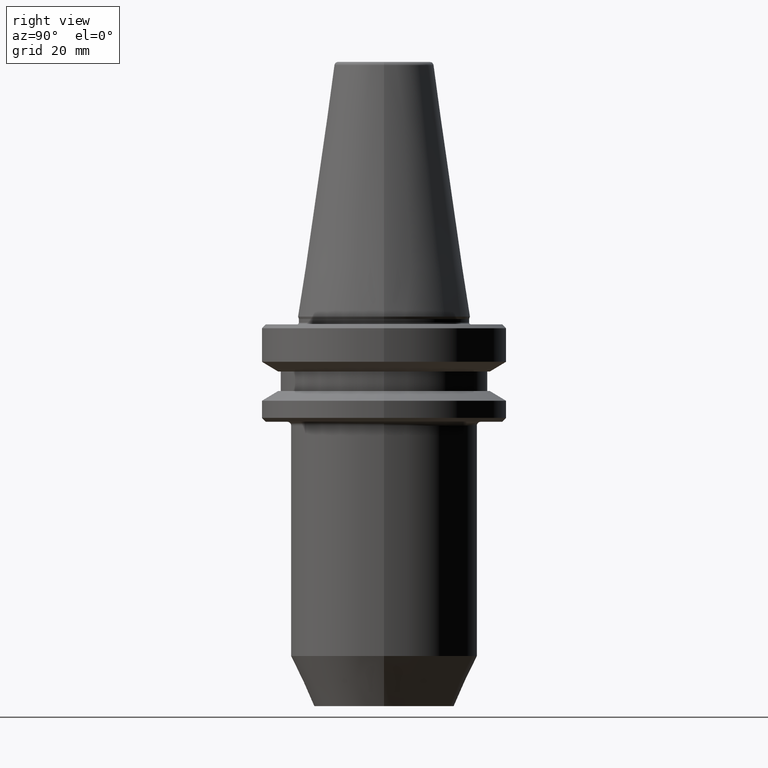
[diagram: clean part render]
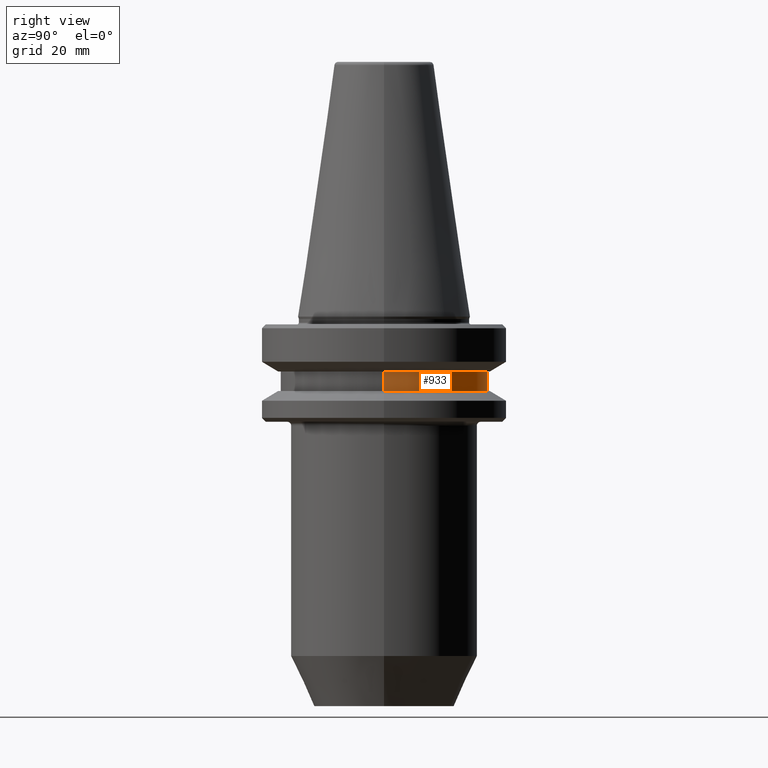
[diagram: same view with one face highlighted and labeled with its STEP entity id]
A machine part, right view. The second image highlights one B-rep face of the part: STEP entity #933.
In plain terms, the highlighted cylindrical surface (partial cylindrical patch) has radius 26.5 mm, axis along (-0, -0, 1).
Its self-contained STEP definition (entity closure, byte-faithful):
#43 = DIRECTION ( 'NONE',  ( -0.0000000000000000000, -0.0000000000000000000, 1.000000000000000000 ) ) ;
#72 = VERTEX_POINT ( 'NONE', #506 ) ;
#98 = CARTESIAN_POINT ( 'NONE',  ( -26.50000000000007800, 3.245314017740495600E-015, 82.74845858742440900 ) ) ;
#120 = AXIS2_PLACEMENT_3D ( 'NONE', #877, #602, #524 ) ;
#131 = EDGE_LOOP ( 'NONE', ( #451, #239, #651, #710 ) ) ;
#163 = CIRCLE ( 'NONE', #120, 26.50000000000007800 ) ;
#190 = AXIS2_PLACEMENT_3D ( 'NONE', #430, #43, #215 ) ;
#207 = CIRCLE ( 'NONE', #308, 26.50000000000007800 ) ;
#215 = DIRECTION ( 'NONE',  ( 1.000000000000000000, 0.0000000000000000000, 0.0000000000000000000 ) ) ;
#222 = DIRECTION ( 'NONE',  ( -0.0000000000000000000, -0.0000000000000000000, 1.000000000000000000 ) ) ;
#239 = ORIENTED_EDGE ( 'NONE', *, *, #712, .T. ) ;
#269 = CYLINDRICAL_SURFACE ( 'NONE', #190, 26.50000000000007800 ) ;
#292 = CARTESIAN_POINT ( 'NONE',  ( -26.50000000000007800, 3.245314017740495600E-015, -13.41128678834002700 ) ) ;
#308 = AXIS2_PLACEMENT_3D ( 'NONE', #993, #630, #406 ) ;
#316 = DIRECTION ( 'NONE',  ( -0.0000000000000000000, -0.0000000000000000000, 1.000000000000000000 ) ) ;
#374 = VERTEX_POINT ( 'NONE', #292 ) ;
#406 = DIRECTION ( 'NONE',  ( 1.000000000000000000, 0.0000000000000000000, 0.0000000000000000000 ) ) ;
#430 = CARTESIAN_POINT ( 'NONE',  ( 0.0000000000000000000, 0.0000000000000000000, 82.74845858742440900 ) ) ;
#446 = VERTEX_POINT ( 'NONE', #921 ) ;
#451 = ORIENTED_EDGE ( 'NONE', *, *, #514, .T. ) ;
#476 = VECTOR ( 'NONE', #316, 1000.000000000000000 ) ;
#506 = CARTESIAN_POINT ( 'NONE',  ( 26.50000000000007800, 0.0000000000000000000, -13.41128678834002700 ) ) ;
#514 = EDGE_CURVE ( 'NONE', #545, #446, #207, .T. ) ;
#515 = FACE_OUTER_BOUND ( 'NONE', #131, .T. ) ;
#524 = DIRECTION ( 'NONE',  ( 1.000000000000000000, 0.0000000000000000000, 0.0000000000000000000 ) ) ;
#545 = VERTEX_POINT ( 'NONE', #971 ) ;
#602 = DIRECTION ( 'NONE',  ( -0.0000000000000000000, -0.0000000000000000000, 1.000000000000000000 ) ) ;
#630 = DIRECTION ( 'NONE',  ( -0.0000000000000000000, -0.0000000000000000000, 1.000000000000000000 ) ) ;
#651 = ORIENTED_EDGE ( 'NONE', *, *, #831, .F. ) ;
#682 = LINE ( 'NONE', #871, #476 ) ;
#710 = ORIENTED_EDGE ( 'NONE', *, *, #802, .F. ) ;
#712 = EDGE_CURVE ( 'NONE', #446, #374, #879, .T. ) ;
#802 = EDGE_CURVE ( 'NONE', #545, #72, #682, .T. ) ;
#831 = EDGE_CURVE ( 'NONE', #72, #374, #163, .T. ) ;
#871 = CARTESIAN_POINT ( 'NONE',  ( 26.50000000000007800, 0.0000000000000000000, 82.74845858742440900 ) ) ;
#877 = CARTESIAN_POINT ( 'NONE',  ( 0.0000000000000000000, 0.0000000000000000000, -13.41128678834002700 ) ) ;
#879 = LINE ( 'NONE', #98, #1019 ) ;
#921 = CARTESIAN_POINT ( 'NONE',  ( -26.50000000000007800, 3.245314017740495600E-015, -18.41128678844344800 ) ) ;
#933 = ADVANCED_FACE ( 'NONE', ( #515 ), #269, .T. ) ;
#971 = CARTESIAN_POINT ( 'NONE',  ( 26.50000000000007800, 0.0000000000000000000, -18.41128678844344800 ) ) ;
#993 = CARTESIAN_POINT ( 'NONE',  ( 0.0000000000000000000, 0.0000000000000000000, -18.41128678844344800 ) ) ;
#1019 = VECTOR ( 'NONE', #222, 1000.000000000000000 ) ;